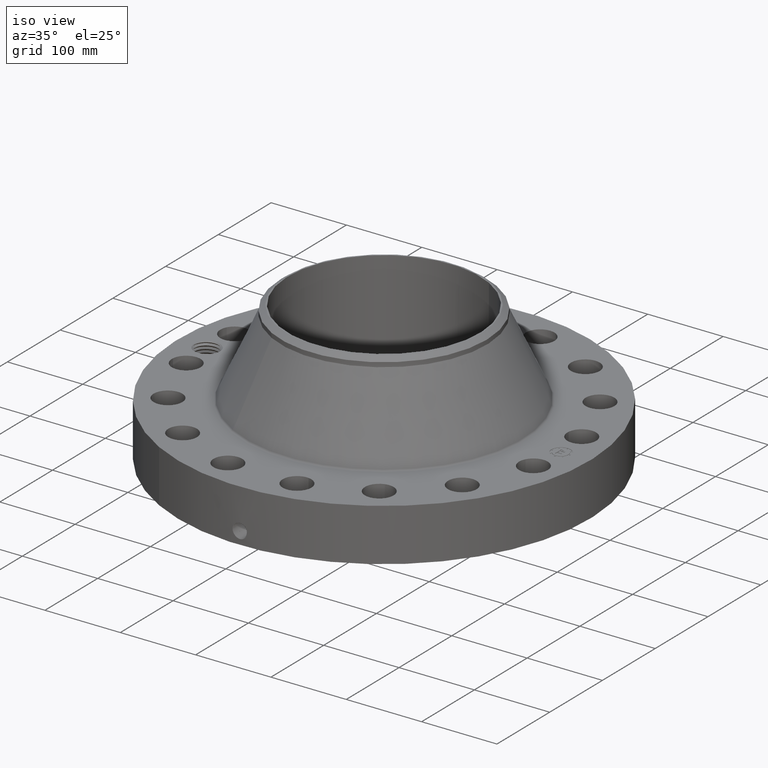
[diagram: clean part render]
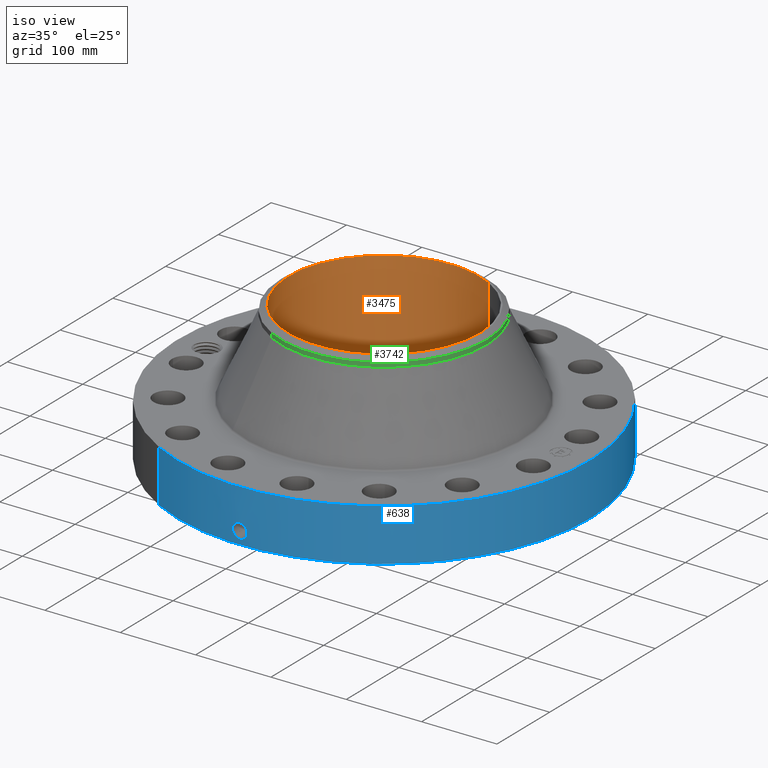
[diagram: same view with three faces highlighted in distinct colors, each labeled with its STEP entity id]
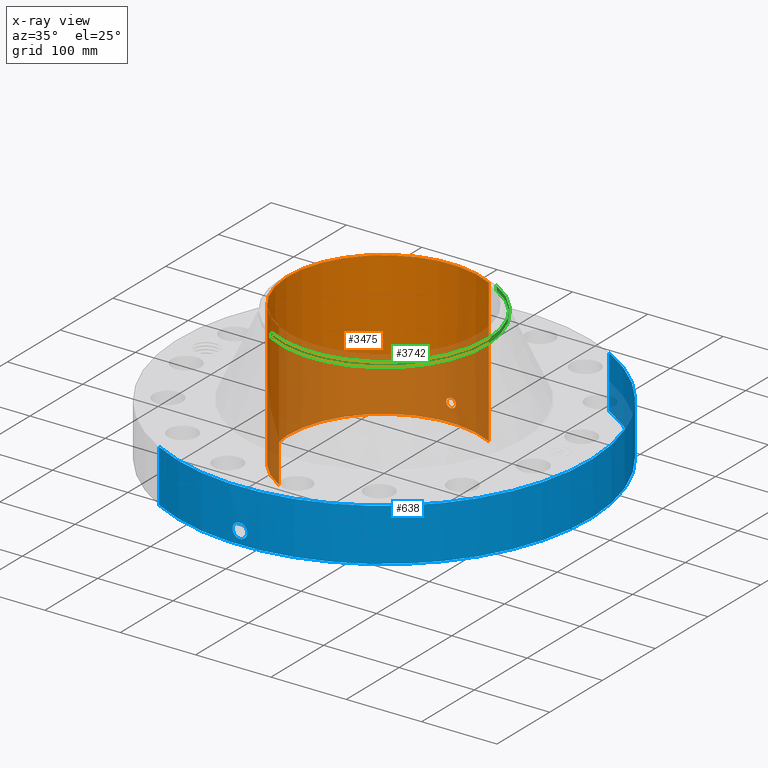
[diagram: x-ray of the same camera — body ghosted, the three highlighted faces saturated]
A machine part, iso view with three faces highlighted in distinct colors.
The next image is the same camera in x-ray (body ghosted, the three faces saturated) — at least one of them is partly hidden behind the body in this view.
Their STEP definitions:

[orange] entity #3475 — the highlighted cylindrical surface (partial cylindrical patch) has radius 127.254 mm, axis along (0, 0, -1).
#2618=AXIS2_PLACEMENT_3D('Circle Axis2P3D',#2616,#2617,$) ;
#3352=AXIS2_PLACEMENT_3D('Cylinder Axis2P3D',#3349,#3350,#3351) ;
#3424=AXIS2_PLACEMENT_3D('Circle Axis2P3D',#3422,#3423,$) ;
#2611=CARTESIAN_POINT('Vertex',(2.40192194842,4.39668863509,-1.23086143203E-014)) ;
#2613=CARTESIAN_POINT('Vertex',(-2.40192194842,-4.39668863509,-1.23086143203E-014)) ;
#2616=CARTESIAN_POINT('Axis2P3D Location',(0.,0.,0.)) ;
#3349=CARTESIAN_POINT('Axis2P3D Location',(0.,0.,3.75000000001)) ;
#3358=CARTESIAN_POINT('Vertex',(2.40192194842,4.39668863509,7.50000000003)) ;
#3360=CARTESIAN_POINT('Vertex',(-2.40192194842,-4.39668863509,7.50000000003)) ;
#3363=CARTESIAN_POINT('Line Origine',(2.40192194842,4.39668863509,3.75000000001)) ;
#3368=CARTESIAN_POINT('Line Origine',(-2.40192194842,-4.39668863509,3.75000000001)) ;
#3422=CARTESIAN_POINT('Axis2P3D Location',(0.,0.,7.50000000003)) ;
#3434=CARTESIAN_POINT('Control Point',(0.219395640473,5.0051938577,1.05985638466)) ;
#3435=CARTESIAN_POINT('Control Point',(0.206921726763,5.00574063418,1.08268973054)) ;
#3436=CARTESIAN_POINT('Control Point',(0.191478298923,5.00637864121,1.10389861734)) ;
#3437=CARTESIAN_POINT('Control Point',(0.173345318071,5.00705858161,1.12297012585)) ;
#3438=CARTESIAN_POINT('Control Point',(0.112137495168,5.00902515689,1.17244844346)) ;
#3439=CARTESIAN_POINT('Control Point',(0.0349834941156,5.0103028337,1.19597315606)) ;
#3440=CARTESIAN_POINT('Control Point',(-0.0195586093873,5.01039831415,1.19761228098)) ;
#3441=CARTESIAN_POINT('Control Point',(-0.124143463877,5.00899203585,1.17247081619)) ;
#3442=CARTESIAN_POINT('Control Point',(-0.203188052597,5.00608110487,1.09956136148)) ;
#3443=CARTESIAN_POINT('Control Point',(-0.232165482161,5.00464790126,1.05334756005)) ;
#3444=CARTESIAN_POINT('Control Point',(-0.255832984997,5.00346793306,0.975190939779)) ;
#3445=CARTESIAN_POINT('Control Point',(-0.24829610309,5.00384337312,0.895801483619)) ;
#3446=CARTESIAN_POINT('Control Point',(-0.242062009687,5.00415848896,0.869217645117)) ;
#3447=CARTESIAN_POINT('Control Point',(-0.232323664128,5.00462717595,0.843808203918)) ;
#3448=CARTESIAN_POINT('Control Point',(-0.219395640473,5.0051938577,0.820143615352)) ;
#3449=CARTESIAN_POINT('Vertex',(0.219395640473,5.0051938577,1.05985638466)) ;
#3451=CARTESIAN_POINT('Vertex',(-0.219395640473,5.0051938577,0.820143615352)) ;
#3455=CARTESIAN_POINT('Control Point',(-0.219395640473,5.0051938577,0.820143615352)) ;
#3456=CARTESIAN_POINT('Control Point',(-0.206921726743,5.00574063418,0.797310269426)) ;
#3457=CARTESIAN_POINT('Control Point',(-0.191478298872,5.00637864122,0.776101382595)) ;
#3458=CARTESIAN_POINT('Control Point',(-0.173345318139,5.00705858161,0.757029874218)) ;
#3459=CARTESIAN_POINT('Control Point',(-0.112137495216,5.00902515689,0.707551556567)) ;
#3460=CARTESIAN_POINT('Control Point',(-0.0349834941262,5.0103028337,0.684026843956)) ;
#3461=CARTESIAN_POINT('Control Point',(0.0195586093934,5.01039831415,0.682387719027)) ;
#3462=CARTESIAN_POINT('Control Point',(0.124143463856,5.00899203585,0.707529183818)) ;
#3463=CARTESIAN_POINT('Control Point',(0.203188052565,5.00608110487,0.780438638498)) ;
#3464=CARTESIAN_POINT('Control Point',(0.232165482173,5.00464790126,0.826652439998)) ;
#3465=CARTESIAN_POINT('Control Point',(0.255832985007,5.00346793306,0.904809060289)) ;
#3466=CARTESIAN_POINT('Control Point',(0.248296103082,5.00384337312,0.984198516472)) ;
#3467=CARTESIAN_POINT('Control Point',(0.242062009717,5.00415848896,1.01078235481)) ;
#3468=CARTESIAN_POINT('Control Point',(0.232323664149,5.00462717594,1.03619179605)) ;
#3469=CARTESIAN_POINT('Control Point',(0.219395640473,5.0051938577,1.05985638466)) ;
#2617=DIRECTION('Axis2P3D Direction',(0.,0.,-0.0393700787402)) ;
#3350=DIRECTION('Axis2P3D Direction',(0.,0.,-0.0393700787402)) ;
#3351=DIRECTION('Axis2P3D XDirection',(-0.0188750212049,-0.0345504945626,0.)) ;
#3364=DIRECTION('Vector Direction',(0.,0.,-0.0393700787402)) ;
#3369=DIRECTION('Vector Direction',(0.,0.,-0.0393700787402)) ;
#3423=DIRECTION('Axis2P3D Direction',(0.,0.,-0.0393700787402)) ;
#3365=VECTOR('Line Direction',#3364,0.0393700787402) ;
#3370=VECTOR('Line Direction',#3369,0.0393700787402) ;
#3428=ORIENTED_EDGE('',*,*,#3426,.F.) ;
#3429=ORIENTED_EDGE('',*,*,#3372,.T.) ;
#3430=ORIENTED_EDGE('',*,*,#2620,.T.) ;
#3431=ORIENTED_EDGE('',*,*,#3367,.F.) ;
#3472=ORIENTED_EDGE('',*,*,#3453,.F.) ;
#3473=ORIENTED_EDGE('',*,*,#3470,.F.) ;
#3474=FACE_BOUND('',#3471,.T.) ;
#3475=ADVANCED_FACE('PartBody',(#3432,#3474),#3353,.F.) ;
#3433=B_SPLINE_CURVE_WITH_KNOTS('',5,(#3434,#3435,#3436,#3437,#3438,#3439,#3440,#3441,#3442,#3443,#3444,#3445,#3446,#3447,#3448),.UNSPECIFIED.,.F.,.U.,(6,3,3,3,6),(0.,4.67408027083,14.0220982174,23.3720849084,28.2163239907),.UNSPECIFIED.) ;
#3454=B_SPLINE_CURVE_WITH_KNOTS('',5,(#3455,#3456,#3457,#3458,#3459,#3460,#3461,#3462,#3463,#3464,#3465,#3466,#3467,#3468,#3469),.UNSPECIFIED.,.F.,.U.,(6,3,3,3,6),(0.,4.67408027848,14.0220982243,23.3720849116,28.2163240017),.UNSPECIFIED.) ;
#2619=CIRCLE('generated circle',#2618,5.01000000002) ;
#3425=CIRCLE('generated circle',#3424,5.01000000002) ;
#3353=CYLINDRICAL_SURFACE('generated cylinder',#3352,5.01000000002) ;
#2620=EDGE_CURVE('',#2614,#2612,#2619,.T.) ;
#3367=EDGE_CURVE('',#3359,#2612,#3366,.T.) ;
#3372=EDGE_CURVE('',#3361,#2614,#3371,.T.) ;
#3426=EDGE_CURVE('',#3361,#3359,#3425,.T.) ;
#3453=EDGE_CURVE('',#3450,#3452,#3433,.T.) ;
#3470=EDGE_CURVE('',#3452,#3450,#3454,.T.) ;
#3427=EDGE_LOOP('',(#3428,#3429,#3430,#3431)) ;
#3471=EDGE_LOOP('',(#3472,#3473)) ;
#3432=FACE_OUTER_BOUND('',#3427,.T.) ;
#3366=LINE('Line',#3363,#3365) ;
#3371=LINE('Line',#3368,#3370) ;
#2612=VERTEX_POINT('',#2611) ;
#2614=VERTEX_POINT('',#2613) ;
#3359=VERTEX_POINT('',#3358) ;
#3361=VERTEX_POINT('',#3360) ;
#3450=VERTEX_POINT('',#3449) ;
#3452=VERTEX_POINT('',#3451) ;

[blue] entity #638 — the highlighted cylindrical surface (partial cylindrical patch) has radius 273.05 mm, axis along (0, 0, -1).
#38=AXIS2_PLACEMENT_3D('Cylinder Axis2P3D',#35,#36,#37) ;
#169=AXIS2_PLACEMENT_3D('Circle Axis2P3D',#167,#168,$) ;
#542=AXIS2_PLACEMENT_3D('Circle Axis2P3D',#540,#541,$) ;
#35=CARTESIAN_POINT('Axis2P3D Location',(0.,0.,3.75000000001)) ;
#44=CARTESIAN_POINT('Vertex',(-5.15382454002,-9.43401254036,0.250000000001)) ;
#46=CARTESIAN_POINT('Vertex',(5.15382454002,9.43401254036,0.250000000001)) ;
#49=CARTESIAN_POINT('Line Origine',(-5.15382454002,-9.43401254036,1.62500000001)) ;
#53=CARTESIAN_POINT('Vertex',(-5.15382454002,-9.43401254036,3.00000000001)) ;
#60=CARTESIAN_POINT('Vertex',(5.15382454002,9.43401254036,3.00000000001)) ;
#63=CARTESIAN_POINT('Line Origine',(5.15382454002,9.43401254036,1.62500000001)) ;
#167=CARTESIAN_POINT('Axis2P3D Location',(0.,0.,0.250000000001)) ;
#540=CARTESIAN_POINT('Axis2P3D Location',(0.,0.,3.00000000001)) ;
#552=CARTESIAN_POINT('Control Point',(0.0567944166525,-10.7498499708,1.28953013562)) ;
#553=CARTESIAN_POINT('Control Point',(0.0382629924693,-10.7499478774,1.29254444993)) ;
#554=CARTESIAN_POINT('Control Point',(0.0194910704007,-10.7499987257,1.29408046659)) ;
#555=CARTESIAN_POINT('Control Point',(0.000716018885388,-10.7499999762,1.29411849942)) ;
#556=CARTESIAN_POINT('Vertex',(0.0567820543428,-10.7498502916,1.28953242631)) ;
#558=CARTESIAN_POINT('Vertex',(0.000715917338792,-10.7499999762,1.29411850989)) ;
#562=CARTESIAN_POINT('Control Point',(0.0567819585678,-10.7498500366,1.28953186744)) ;
#563=CARTESIAN_POINT('Control Point',(0.0966632576018,-10.749639379,1.28488521852)) ;
#564=CARTESIAN_POINT('Control Point',(0.135842754105,-10.7492020479,1.27297024646)) ;
#565=CARTESIAN_POINT('Control Point',(0.171864801758,-10.7486260746,1.25462752922)) ;
#566=CARTESIAN_POINT('Vertex',(0.171864801758,-10.7486260746,1.25462752922)) ;
#570=CARTESIAN_POINT('Control Point',(0.0305848860409,-10.7499564913,0.531157240761)) ;
#571=CARTESIAN_POINT('Control Point',(0.0995195039378,-10.7497603643,0.539904444069)) ;
#572=CARTESIAN_POINT('Control Point',(0.166100724903,-10.7490183702,0.564153538489)) ;
#573=CARTESIAN_POINT('Control Point',(0.225415790235,-10.7478174907,0.603028387265)) ;
#574=CARTESIAN_POINT('Control Point',(0.297416267861,-10.7459654534,0.677044287746)) ;
#575=CARTESIAN_POINT('Control Point',(0.341890627302,-10.7445741109,0.76703052902)) ;
#576=CARTESIAN_POINT('Control Point',(0.353305818118,-10.7441977764,0.797759290616)) ;
#577=CARTESIAN_POINT('Control Point',(0.371781668144,-10.7435740431,0.869149711405)) ;
#578=CARTESIAN_POINT('Control Point',(0.373464773133,-10.7435087124,0.942550395152)) ;
#579=CARTESIAN_POINT('Control Point',(0.369105068126,-10.7436639568,0.983246291565)) ;
#580=CARTESIAN_POINT('Control Point',(0.346835581176,-10.7444360489,1.07538191981)) ;
#581=CARTESIAN_POINT('Control Point',(0.297852181008,-10.7459335321,1.15663707885)) ;
#582=CARTESIAN_POINT('Control Point',(0.261839366905,-10.7469281327,1.19745841987)) ;
#583=CARTESIAN_POINT('Control Point',(0.219078097956,-10.7478711591,1.23058613573)) ;
#584=CARTESIAN_POINT('Control Point',(0.171864801757,-10.7486260746,1.25462752922)) ;
#585=CARTESIAN_POINT('Vertex',(0.0305848860409,-10.7499564913,0.531157240761)) ;
#589=CARTESIAN_POINT('Control Point',(0.0305848860409,-10.7499564913,0.531157240761)) ;
#590=CARTESIAN_POINT('Control Point',(0.0203844796572,-10.7499855127,0.530869974424)) ;
#591=CARTESIAN_POINT('Control Point',(0.0101779958864,-10.7500000026,0.530942614676)) ;
#592=CARTESIAN_POINT('Control Point',(-2.72878353563E-006,-10.75,0.531374667805)) ;
#593=CARTESIAN_POINT('Vertex',(-2.72878354086E-006,-10.75,0.531374667805)) ;
#597=CARTESIAN_POINT('Control Point',(-0.192994359745,-10.7482674501,0.586736654107)) ;
#598=CARTESIAN_POINT('Control Point',(-0.149148195142,-10.7490547455,0.561643875803)) ;
#599=CARTESIAN_POINT('Control Point',(-0.101145673126,-10.7496790041,0.54364246338)) ;
#600=CARTESIAN_POINT('Control Point',(-0.0508155935993,-10.7499999871,0.533531079885)) ;
#601=CARTESIAN_POINT('Control Point',(-2.72878355473E-006,-10.75,0.531374667805)) ;
#602=CARTESIAN_POINT('Vertex',(-0.192994359745,-10.7482674501,0.586736654107)) ;
#606=CARTESIAN_POINT('Control Point',(-0.192994359745,-10.7482674501,0.586736654107)) ;
#607=CARTESIAN_POINT('Control Point',(-0.221848470839,-10.7477493498,0.6032496101)) ;
#608=CARTESIAN_POINT('Control Point',(-0.249019842437,-10.7471646084,0.622640986813)) ;
#609=CARTESIAN_POINT('Control Point',(-0.274104091697,-10.7465429546,0.644726392733)) ;
#610=CARTESIAN_POINT('Control Point',(-0.340614404735,-10.744718104,0.716853877824)) ;
#611=CARTESIAN_POINT('Control Point',(-0.382738131549,-10.7432168297,0.806816471675)) ;
#612=CARTESIAN_POINT('Control Point',(-0.397428599454,-10.7426387562,0.871363686275)) ;
#613=CARTESIAN_POINT('Control Point',(-0.397846527336,-10.7426626095,0.998339861538)) ;
#614=CARTESIAN_POINT('Control Point',(-0.348008168849,-10.7444099638,1.1134032132)) ;
#615=CARTESIAN_POINT('Control Point',(-0.312903341122,-10.7455631406,1.16309909193)) ;
#616=CARTESIAN_POINT('Control Point',(-0.234583507398,-10.7476755014,1.23721939627)) ;
#617=CARTESIAN_POINT('Control Point',(-0.137662065603,-10.7492549656,1.27962320963)) ;
#618=CARTESIAN_POINT('Control Point',(-0.0921850417951,-10.749755908,1.29158731264)) ;
#619=CARTESIAN_POINT('Control Point',(-0.0458118854389,-10.7500001103,1.2964002984)) ;
#620=CARTESIAN_POINT('Control Point',(2.58579355341E-005,-10.75,1.29415298431)) ;
#621=CARTESIAN_POINT('Vertex',(2.58579355399E-005,-10.75,1.29415298431)) ;
#625=CARTESIAN_POINT('Control Point',(0.000715917328898,-10.7499999762,1.29411850987)) ;
#626=CARTESIAN_POINT('Control Point',(0.000370911873319,-10.7499999992,1.29413606715)) ;
#627=CARTESIAN_POINT('Control Point',(2.58579409601E-005,-10.75,1.29415298431)) ;
#36=DIRECTION('Axis2P3D Direction',(0.,0.,-0.0393700787402)) ;
#37=DIRECTION('Axis2P3D XDirection',(0.0188750212049,0.0345504945626,0.)) ;
#50=DIRECTION('Vector Direction',(0.,0.,-0.0393700787402)) ;
#64=DIRECTION('Vector Direction',(0.,0.,-0.0393700787402)) ;
#168=DIRECTION('Axis2P3D Direction',(0.,0.,-0.0393700787402)) ;
#541=DIRECTION('Axis2P3D Direction',(0.,0.,-0.0393700787402)) ;
#51=VECTOR('Line Direction',#50,0.0393700787402) ;
#65=VECTOR('Line Direction',#64,0.0393700787402) ;
#546=ORIENTED_EDGE('',*,*,#171,.F.) ;
#547=ORIENTED_EDGE('',*,*,#67,.T.) ;
#548=ORIENTED_EDGE('',*,*,#544,.T.) ;
#549=ORIENTED_EDGE('',*,*,#55,.F.) ;
#630=ORIENTED_EDGE('',*,*,#560,.F.) ;
#631=ORIENTED_EDGE('',*,*,#568,.T.) ;
#632=ORIENTED_EDGE('',*,*,#587,.F.) ;
#633=ORIENTED_EDGE('',*,*,#595,.T.) ;
#634=ORIENTED_EDGE('',*,*,#604,.F.) ;
#635=ORIENTED_EDGE('',*,*,#623,.T.) ;
#636=ORIENTED_EDGE('',*,*,#628,.F.) ;
#637=FACE_BOUND('',#629,.T.) ;
#638=ADVANCED_FACE('PartBody',(#550,#637),#39,.T.) ;
#551=B_SPLINE_CURVE_WITH_KNOTS('',3,(#552,#553,#554,#555),.UNSPECIFIED.,.F.,.U.,(4,4),(4.43834912269,6.52127021112),.UNSPECIFIED.) ;
#561=B_SPLINE_CURVE_WITH_KNOTS('',3,(#562,#563,#564,#565),.UNSPECIFIED.,.F.,.U.,(4,4),(0.,4.51145082241),.UNSPECIFIED.) ;
#569=B_SPLINE_CURVE_WITH_KNOTS('',5,(#570,#571,#572,#573,#574,#575,#576,#577,#578,#579,#580,#581,#582,#583,#584),.UNSPECIFIED.,.F.,.U.,(6,3,3,3,6),(0.,12.0763342146,17.9495287819,25.3608838209,35.2159809969),.UNSPECIFIED.) ;
#588=B_SPLINE_CURVE_WITH_KNOTS('',3,(#589,#590,#591,#592),.UNSPECIFIED.,.F.,.U.,(4,4),(0.,1.06400479433),.UNSPECIFIED.) ;
#596=B_SPLINE_CURVE_WITH_KNOTS('',4,(#597,#598,#599,#600,#601),.UNSPECIFIED.,.F.,.U.,(5,5),(0.,7.08071817483),.UNSPECIFIED.) ;
#605=B_SPLINE_CURVE_WITH_KNOTS('',5,(#606,#607,#608,#609,#610,#611,#612,#613,#614,#615,#616,#617,#618,#619,#620),.UNSPECIFIED.,.F.,.U.,(6,3,3,3,6),(0.,5.82456381307,17.1408283005,27.8149222192,36.3829473589),.UNSPECIFIED.) ;
#624=B_SPLINE_CURVE_WITH_KNOTS('',2,(#625,#626,#627),.UNSPECIFIED.,.F.,.U.,(3,3),(1.03536001126,1.06115910772),.UNSPECIFIED.) ;
#170=CIRCLE('generated circle',#169,10.75) ;
#543=CIRCLE('generated circle',#542,10.75) ;
#39=CYLINDRICAL_SURFACE('generated cylinder',#38,10.75) ;
#55=EDGE_CURVE('',#45,#54,#52,.F.) ;
#67=EDGE_CURVE('',#47,#61,#66,.F.) ;
#171=EDGE_CURVE('',#47,#45,#170,.T.) ;
#544=EDGE_CURVE('',#61,#54,#543,.T.) ;
#560=EDGE_CURVE('',#557,#559,#551,.T.) ;
#568=EDGE_CURVE('',#557,#567,#561,.T.) ;
#587=EDGE_CURVE('',#586,#567,#569,.T.) ;
#595=EDGE_CURVE('',#586,#594,#588,.T.) ;
#604=EDGE_CURVE('',#603,#594,#596,.T.) ;
#623=EDGE_CURVE('',#603,#622,#605,.T.) ;
#628=EDGE_CURVE('',#559,#622,#624,.T.) ;
#545=EDGE_LOOP('',(#546,#547,#548,#549)) ;
#629=EDGE_LOOP('',(#630,#631,#632,#633,#634,#635,#636)) ;
#550=FACE_OUTER_BOUND('',#545,.T.) ;
#52=LINE('Line',#49,#51) ;
#66=LINE('Line',#63,#65) ;
#45=VERTEX_POINT('',#44) ;
#47=VERTEX_POINT('',#46) ;
#54=VERTEX_POINT('',#53) ;
#61=VERTEX_POINT('',#60) ;
#557=VERTEX_POINT('',#556) ;
#559=VERTEX_POINT('',#558) ;
#567=VERTEX_POINT('',#566) ;
#586=VERTEX_POINT('',#585) ;
#594=VERTEX_POINT('',#593) ;
#603=VERTEX_POINT('',#602) ;
#622=VERTEX_POINT('',#621) ;

[green] entity #3742 — the highlighted cylindrical surface (partial cylindrical patch) has radius 136.525 mm, axis along (0, 0, -1).
#2910=AXIS2_PLACEMENT_3D('Circle Axis2P3D',#2908,#2909,$) ;
#3707=AXIS2_PLACEMENT_3D('Cylinder Axis2P3D',#3704,#3705,#3706) ;
#3725=AXIS2_PLACEMENT_3D('Circle Axis2P3D',#3723,#3724,$) ;
#3732=AXIS2_PLACEMENT_3D('Circle Axis2P3D',#3730,#3731,$) ;
#2905=CARTESIAN_POINT('Vertex',(2.57691227001,4.71700627018,7.04412462485)) ;
#2908=CARTESIAN_POINT('Axis2P3D Location',(0.,0.,7.04412462485)) ;
#2912=CARTESIAN_POINT('Vertex',(-2.57691227001,-4.71700627018,7.04412462485)) ;
#3704=CARTESIAN_POINT('Axis2P3D Location',(0.,0.,3.75000000001)) ;
#3709=CARTESIAN_POINT('Line Origine',(-2.57691227001,-4.71700627018,7.16223486107)) ;
#3713=CARTESIAN_POINT('Vertex',(-2.57691227001,-4.71700627018,7.28034509729)) ;
#3716=CARTESIAN_POINT('Line Origine',(2.57691227001,4.71700627018,7.16223486107)) ;
#3720=CARTESIAN_POINT('Vertex',(2.57691227001,4.71700627018,7.28034509729)) ;
#3723=CARTESIAN_POINT('Axis2P3D Location',(0.,0.,7.28034509729)) ;
#3727=CARTESIAN_POINT('Vertex',(2.57691227001,-4.71700627018,7.28034509729)) ;
#3730=CARTESIAN_POINT('Axis2P3D Location',(0.,0.,7.28034509729)) ;
#2909=DIRECTION('Axis2P3D Direction',(0.,0.,-0.0393700787402)) ;
#3705=DIRECTION('Axis2P3D Direction',(0.,0.,-0.0393700787402)) ;
#3706=DIRECTION('Axis2P3D XDirection',(-0.0188750212049,-0.0345504945626,0.)) ;
#3710=DIRECTION('Vector Direction',(0.,0.,-0.0393700787402)) ;
#3717=DIRECTION('Vector Direction',(0.,0.,-0.0393700787402)) ;
#3724=DIRECTION('Axis2P3D Direction',(0.,0.,-0.0393700787402)) ;
#3731=DIRECTION('Axis2P3D Direction',(0.,0.,-0.0393700787402)) ;
#3711=VECTOR('Line Direction',#3710,0.0393700787402) ;
#3718=VECTOR('Line Direction',#3717,0.0393700787402) ;
#3736=ORIENTED_EDGE('',*,*,#3715,.F.) ;
#3737=ORIENTED_EDGE('',*,*,#2914,.F.) ;
#3738=ORIENTED_EDGE('',*,*,#3722,.T.) ;
#3739=ORIENTED_EDGE('',*,*,#3729,.F.) ;
#3740=ORIENTED_EDGE('',*,*,#3734,.T.) ;
#3742=ADVANCED_FACE('PartBody',(#3741),#3708,.T.) ;
#2911=CIRCLE('generated circle',#2910,5.37500000002) ;
#3726=CIRCLE('generated circle',#3725,5.37500000002) ;
#3733=CIRCLE('generated circle',#3732,5.37500000002) ;
#3708=CYLINDRICAL_SURFACE('generated cylinder',#3707,5.37500000002) ;
#2914=EDGE_CURVE('',#2906,#2913,#2911,.T.) ;
#3715=EDGE_CURVE('',#2913,#3714,#3712,.F.) ;
#3722=EDGE_CURVE('',#2906,#3721,#3719,.F.) ;
#3729=EDGE_CURVE('',#3728,#3721,#3726,.F.) ;
#3734=EDGE_CURVE('',#3728,#3714,#3733,.T.) ;
#3735=EDGE_LOOP('',(#3736,#3737,#3738,#3739,#3740)) ;
#3741=FACE_OUTER_BOUND('',#3735,.T.) ;
#3712=LINE('Line',#3709,#3711) ;
#3719=LINE('Line',#3716,#3718) ;
#2906=VERTEX_POINT('',#2905) ;
#2913=VERTEX_POINT('',#2912) ;
#3714=VERTEX_POINT('',#3713) ;
#3721=VERTEX_POINT('',#3720) ;
#3728=VERTEX_POINT('',#3727) ;